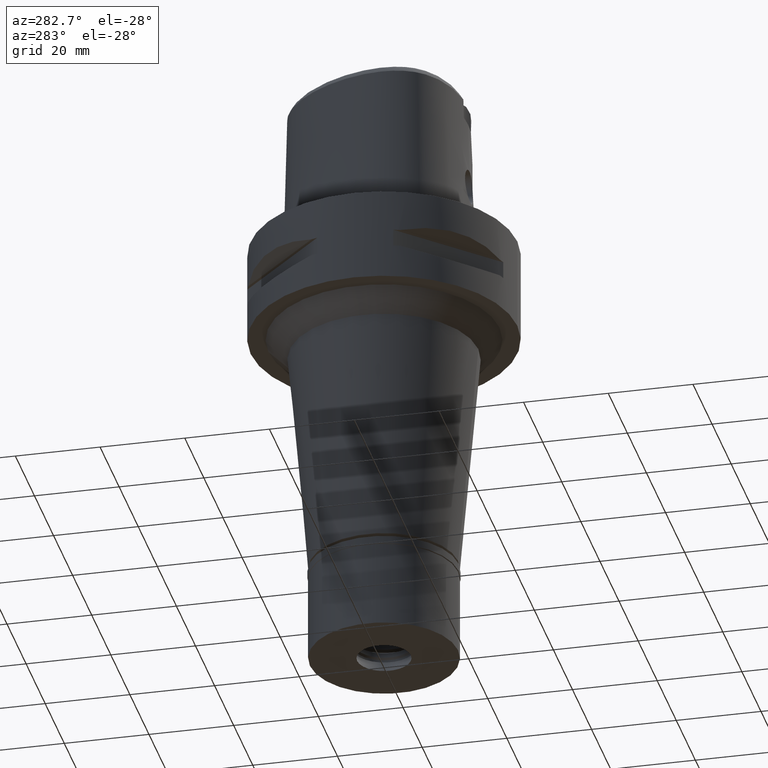
[diagram: clean part render]
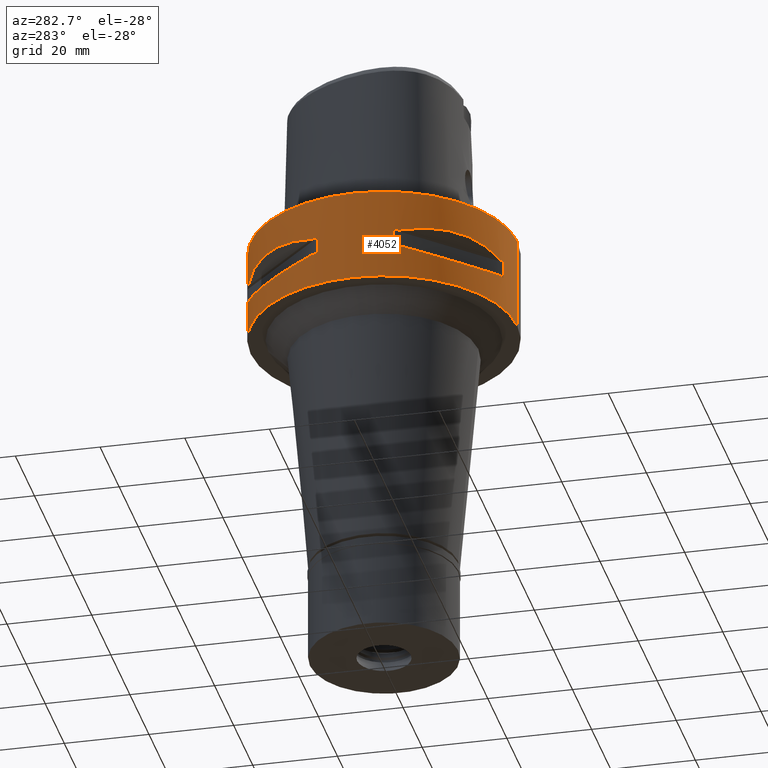
[diagram: same view with one face highlighted and labeled with its STEP entity id]
A machine part, auxiliary view. The second image highlights one B-rep face of the part: STEP entity #4052.
In plain terms, the highlighted cylindrical surface (partial cylindrical patch) has radius 31.5 mm, axis along (0, 0, -1).
Its self-contained STEP definition (entity closure, byte-faithful):
#28 = DIRECTION ( 'NONE',  ( 0.0000000000000000000, 0.0000000000000000000, 1.000000000000000000 ) ) ;
#47 = DIRECTION ( 'NONE',  ( 0.0000000000000000000, 0.0000000000000000000, 1.000000000000000000 ) ) ;
#51 = EDGE_CURVE ( 'NONE', #4972, #795, #2854, .T. ) ;
#57 = DIRECTION ( 'NONE',  ( 0.0000000000000000000, 0.0000000000000000000, -1.000000000000000000 ) ) ;
#63 = CARTESIAN_POINT ( 'NONE',  ( -23.90617837140505841, 20.64154884334744722, -8.160613588441446353 ) ) ;
#92 = VECTOR ( 'NONE', #4128, 1000.000000000000000 ) ;
#105 = CARTESIAN_POINT ( 'NONE',  ( -8.981198972019999616, -30.19251670572000279, -14.05000000000000071 ) ) ;
#111 = LINE ( 'NONE', #815, #173 ) ;
#112 = CARTESIAN_POINT ( 'NONE',  ( -8.981198972019999616, 30.19251670572000279, -9.950000000000001066 ) ) ;
#154 = CARTESIAN_POINT ( 'NONE',  ( -29.71690375017999841, 10.44775724750000023, -14.05000000000000071 ) ) ;
#173 = VECTOR ( 'NONE', #3857, 1000.000000000000000 ) ;
#188 = DIRECTION ( 'NONE',  ( 0.0000000000000000000, 0.0000000000000000000, -1.000000000000000000 ) ) ;
#196 = CARTESIAN_POINT ( 'NONE',  ( -29.31542262584746794, -11.58970337494326941, -14.35229357166913999 ) ) ;
#246 = DIRECTION ( 'NONE',  ( 0.0000000000000000000, 1.000000000000000000, 0.0000000000000000000 ) ) ;
#253 = CARTESIAN_POINT ( 'NONE',  ( -8.981198972017999438, 30.19251670572000279, -14.05000000000000071 ) ) ;
#256 = VERTEX_POINT ( 'NONE', #4543 ) ;
#288 = CARTESIAN_POINT ( 'NONE',  ( -25.37277178168283953, -18.81455742163207390, -8.309746333127383977 ) ) ;
#310 = FACE_OUTER_BOUND ( 'NONE', #471, .T. ) ;
#315 = CIRCLE ( 'NONE', #891, 31.50000000000001776 ) ;
#357 = ORIENTED_EDGE ( 'NONE', *, *, #1693, .T. ) ;
#434 = CARTESIAN_POINT ( 'NONE',  ( -30.19251670572000279, -8.981198972017999438, -14.05000000000000071 ) ) ;
#465 = CARTESIAN_POINT ( 'NONE',  ( -24.23018836745279714, 20.18579225685798306, -15.78559396978850415 ) ) ;
#471 = EDGE_LOOP ( 'NONE', ( #2396, #1715, #2513, #3330 ) ) ;
#475 = CARTESIAN_POINT ( 'NONE',  ( -26.70521063584532229, -16.70616724745790549, -15.37546661817682292 ) ) ;
#479 = CARTESIAN_POINT ( 'NONE',  ( -29.71690375017999841, 10.44775724750000023, -9.949999999998999201 ) ) ;
#500 = CARTESIAN_POINT ( 'NONE',  ( -26.84474411198783628, -16.48208282228858224, -15.34094883777952667 ) ) ;
#532 = VERTEX_POINT ( 'NONE', #4860 ) ;
#539 = CARTESIAN_POINT ( 'NONE',  ( -26.01217882834653139, 17.76952662671834915, -15.52665221626015501 ) ) ;
#613 = DIRECTION ( 'NONE',  ( 0.0000000000000000000, 0.0000000000000000000, -1.000000000000000000 ) ) ;
#630 = CARTESIAN_POINT ( 'NONE',  ( 0.0000000000000000000, 1.284838189324999924E-14, -14.05000000000000071 ) ) ;
#660 = VECTOR ( 'NONE', #2873, 1000.000000000000000 ) ;
#668 = EDGE_CURVE ( 'NONE', #845, #688, #1552, .T. ) ;
#670 = ORIENTED_EDGE ( 'NONE', *, *, #3079, .T. ) ;
#688 = VERTEX_POINT ( 'NONE', #4953 ) ;
#728 = AXIS2_PLACEMENT_3D ( 'NONE', #3966, #3637, #3234 ) ;
#766 = CARTESIAN_POINT ( 'NONE',  ( 0.0000000000000000000, 1.284838189324999924E-14, -9.950000000000001066 ) ) ;
#768 = CARTESIAN_POINT ( 'NONE',  ( -16.48208282228564769, 26.84474411198887012, -15.34094883777873619 ) ) ;
#771 = CARTESIAN_POINT ( 'NONE',  ( -20.64154884334743656, 23.90617837140507262, -8.160627831333194138 ) ) ;
#792 = EDGE_LOOP ( 'NONE', ( #670, #3535, #1336, #3014, #357, #3177, #2005, #2811 ) ) ;
#795 = VERTEX_POINT ( 'NONE', #1231 ) ;
#805 = CIRCLE ( 'NONE', #2021, 31.50000000000001776 ) ;
#815 = CARTESIAN_POINT ( 'NONE',  ( -8.981198972017999438, -30.19251670572000279, -14.05000000000000071 ) ) ;
#820 = AXIS2_PLACEMENT_3D ( 'NONE', #630, #613, #4030 ) ;
#824 = CARTESIAN_POINT ( 'NONE',  ( -18.81455742151813837, 25.37277178176733372, -8.309746333162701504 ) ) ;
#827 = CIRCLE ( 'NONE', #2675, 31.50000000000000000 ) ;
#832 = AXIS2_PLACEMENT_3D ( 'NONE', #2988, #47, #2291 ) ;
#845 = VERTEX_POINT ( 'NONE', #112 ) ;
#856 = ORIENTED_EDGE ( 'NONE', *, *, #1075, .F. ) ;
#880 = CARTESIAN_POINT ( 'NONE',  ( -17.35163608579889072, -26.29071741523761929, -15.46976201925527761 ) ) ;
#886 = DIRECTION ( 'NONE',  ( 0.0000000000000000000, -1.000000000000000000, 0.0000000000000000000 ) ) ;
#891 = AXIS2_PLACEMENT_3D ( 'NONE', #2785, #2057, #3172 ) ;
#900 = LINE ( 'NONE', #2062, #2095 ) ;
#932 = ORIENTED_EDGE ( 'NONE', *, *, #1469, .F. ) ;
#936 = CARTESIAN_POINT ( 'NONE',  ( -29.71690375017999841, -10.44775724750000023, -9.949999999998999201 ) ) ;
#984 = CARTESIAN_POINT ( 'NONE',  ( -26.60451452154760332, -16.86571563436626064, -15.39949295786003347 ) ) ;
#1018 = DIRECTION ( 'NONE',  ( 0.0000000000000000000, 0.0000000000000000000, 1.000000000000000000 ) ) ;
#1075 = EDGE_CURVE ( 'NONE', #845, #1614, #1773, .T. ) ;
#1209 = CARTESIAN_POINT ( 'NONE',  ( -20.65093790435807364, 23.89673728056094859, -15.83935804902020550 ) ) ;
#1224 = CARTESIAN_POINT ( 'NONE',  ( 0.0000000000000000000, 1.284838189324999924E-14, -9.950000000000001066 ) ) ;
#1231 = CARTESIAN_POINT ( 'NONE',  ( -30.19251670572000279, 8.981198972017999438, -9.950000000000001066 ) ) ;
#1260 = CARTESIAN_POINT ( 'NONE',  ( -26.54368690921649687, 16.96123479564916892, -15.41365572341313239 ) ) ;
#1272 = EDGE_CURVE ( 'NONE', #2385, #2939, #1387, .T. ) ;
#1284 = CARTESIAN_POINT ( 'NONE',  ( -26.29071741523646111, 17.35163608579689409, -15.46976201925398087 ) ) ;
#1292 = CARTESIAN_POINT ( 'NONE',  ( -17.76952662672209371, -26.01217882834868433, -15.52665221626257264 ) ) ;
#1302 = DIRECTION ( 'NONE',  ( 0.0000000000000000000, 0.0000000000000000000, 1.000000000000000000 ) ) ;
#1319 = CARTESIAN_POINT ( 'NONE',  ( -30.19251670572000279, 8.981198972019999616, -14.05000000000000071 ) ) ;
#1331 = CARTESIAN_POINT ( 'NONE',  ( -26.42800887047508240, 17.14106442934706820, -15.43984550238465836 ) ) ;
#1332 = DIRECTION ( 'NONE',  ( 0.0000000000000000000, 0.0000000000000000000, -1.000000000000000000 ) ) ;
#1336 = ORIENTED_EDGE ( 'NONE', *, *, #1272, .T. ) ;
#1353 = CARTESIAN_POINT ( 'NONE',  ( -8.981198972017999438, -30.19251670572000279, -9.950000000000001066 ) ) ;
#1363 = CARTESIAN_POINT ( 'NONE',  ( -26.58330558444411906, -16.89910283486596754, -15.40446471307235754 ) ) ;
#1387 = CIRCLE ( 'NONE', #728, 31.50000000000001776 ) ;
#1450 = CARTESIAN_POINT ( 'NONE',  ( -28.92474506844683546, -12.70092055730903802, -9.353547358226721897 ) ) ;
#1469 = EDGE_CURVE ( 'NONE', #532, #2609, #4804, .T. ) ;
#1474 = CARTESIAN_POINT ( 'NONE',  ( -10.44775724750000023, 29.71690375017999841, -14.05000000000000071 ) ) ;
#1552 = CIRCLE ( 'NONE', #2595, 31.50000000000001776 ) ;
#1554 = CARTESIAN_POINT ( 'NONE',  ( -11.58970337493613378, 29.31542262584994418, -14.35229357166721265 ) ) ;
#1579 = CARTESIAN_POINT ( 'NONE',  ( -16.89910283486545950, 26.58330558444438907, -15.40446471307224030 ) ) ;
#1614 = VERTEX_POINT ( 'NONE', #253 ) ;
#1623 = LINE ( 'NONE', #2404, #1792 ) ;
#1628 = CARTESIAN_POINT ( 'NONE',  ( -26.48642424310458665, 17.05047092244234008, -15.42670883407647509 ) ) ;
#1641 = ORIENTED_EDGE ( 'NONE', *, *, #4386, .T. ) ;
#1690 = VERTEX_POINT ( 'NONE', #2479 ) ;
#1693 = EDGE_CURVE ( 'NONE', #2699, #2367, #4528, .T. ) ;
#1704 = CARTESIAN_POINT ( 'NONE',  ( 0.0000000000000000000, 1.284838189324999924E-14, -14.05000000000000071 ) ) ;
#1712 = CARTESIAN_POINT ( 'NONE',  ( -25.32725744469575702, -18.86897208070564247, -15.69588095933118943 ) ) ;
#1715 = ORIENTED_EDGE ( 'NONE', *, *, #4529, .F. ) ;
#1773 = LINE ( 'NONE', #4853, #92 ) ;
#1792 = VECTOR ( 'NONE', #57, 1000.000000000000000 ) ;
#1829 = CARTESIAN_POINT ( 'NONE',  ( -23.90617837147175706, -20.64154884328073081, -8.160627831309646751 ) ) ;
#1844 = AXIS2_PLACEMENT_3D ( 'NONE', #1704, #188, #3257 ) ;
#1856 = DIRECTION ( 'NONE',  ( 0.0000000000000000000, 0.0000000000000000000, -1.000000000000000000 ) ) ;
#1862 = B_SPLINE_CURVE_WITH_KNOTS ( 'NONE', 3,
 ( #3712, #1450, #2943, #288, #1829, #2962, #4511, #2230, #4840, #4886 ),
 .UNSPECIFIED., .F., .F.,
 ( 4, 2, 2, 2, 4 ),
 ( 0.0000000000000000000, 0.2499999999999999445, 0.4999999999999998890, 0.7499999999999997780, 1.000000000000000000 ),
 .UNSPECIFIED. ) ;
#1884 = DIRECTION ( 'NONE',  ( 0.0000000000000000000, 0.0000000000000000000, 1.000000000000000000 ) ) ;
#1888 = CARTESIAN_POINT ( 'NONE',  ( -25.37272068390328172, 18.81462633043449273, -8.309724968561150504 ) ) ;
#1910 = CARTESIAN_POINT ( 'NONE',  ( -28.92472615202279584, 12.70097436192367546, -9.353533115182571578 ) ) ;
#1931 = VERTEX_POINT ( 'NONE', #4255 ) ;
#1961 = CARTESIAN_POINT ( 'NONE',  ( -16.03138450077636534, 27.11872488589498786, -15.26880420107476333 ) ) ;
#2005 = ORIENTED_EDGE ( 'NONE', *, *, #4662, .T. ) ;
#2017 = CARTESIAN_POINT ( 'NONE',  ( -23.89673728055121416, -20.65093790435243193, -15.83935804901394739 ) ) ;
#2021 = AXIS2_PLACEMENT_3D ( 'NONE', #3200, #1302, #4736 ) ;
#2030 = EDGE_CURVE ( 'NONE', #2540, #3357, #1623, .T. ) ;
#2049 = CARTESIAN_POINT ( 'NONE',  ( -18.59229662065495958, -25.43927894891979946, -15.62866126334684580 ) ) ;
#2057 = DIRECTION ( 'NONE',  ( 0.0000000000000000000, 0.0000000000000000000, -1.000000000000000000 ) ) ;
#2062 = CARTESIAN_POINT ( 'NONE',  ( -30.19251670572000279, -8.981198972017999438, -9.950000000000001066 ) ) ;
#2095 = VECTOR ( 'NONE', #1332, 1000.000000000000000 ) ;
#2097 = EDGE_CURVE ( 'NONE', #2385, #4483, #111, .T. ) ;
#2124 = CARTESIAN_POINT ( 'NONE',  ( -30.19251670572000279, -8.981198972019999616, -9.950000000000001066 ) ) ;
#2149 = CARTESIAN_POINT ( 'NONE',  ( 0.0000000000000000000, 1.284838189324999924E-14, 0.0000000000000000000 ) ) ;
#2163 = DIRECTION ( 'NONE',  ( 0.0000000000000000000, -1.000000000000000000, 0.0000000000000000000 ) ) ;
#2189 = AXIS2_PLACEMENT_3D ( 'NONE', #1224, #28, #2319 ) ;
#2230 = CARTESIAN_POINT ( 'NONE',  ( -14.84430321578702738, -27.88210502983994132, -8.906184731967030643 ) ) ;
#2278 = DIRECTION ( 'NONE',  ( -0.2851174276831918153, 0.9584925938322735872, 0.0000000000000000000 ) ) ;
#2279 = ORIENTED_EDGE ( 'NONE', *, *, #4205, .T. ) ;
#2291 = DIRECTION ( 'NONE',  ( -0.3316748332540863653, -0.9433937698468619626, 0.0000000000000000000 ) ) ;
#2305 = CARTESIAN_POINT ( 'NONE',  ( -16.70616724745637072, 26.70521063584585164, -15.37546661817639126 ) ) ;
#2319 = DIRECTION ( 'NONE',  ( -0.9433937698468619626, 0.3316748332540863653, 0.0000000000000000000 ) ) ;
#2360 = VERTEX_POINT ( 'NONE', #479 ) ;
#2367 = VERTEX_POINT ( 'NONE', #434 ) ;
#2385 = VERTEX_POINT ( 'NONE', #105 ) ;
#2396 = ORIENTED_EDGE ( 'NONE', *, *, #2837, .T. ) ;
#2404 = CARTESIAN_POINT ( 'NONE',  ( 0.0000000000000000000, 31.50000000000000000, 0.0000000000000000000 ) ) ;
#2451 = B_SPLINE_CURVE_WITH_KNOTS ( 'NONE', 3,
 ( #2469, #196, #4017, #3640, #3285, #500, #475, #2801, #984, #1363, #1712, #2017, #2515, #3570, #2049, #1292, #880, #3264, #3996, #4796, #3191, #4767, #4372, #2870 ),
 .UNSPECIFIED., .F., .F.,
 ( 4, 1, 1, 1, 1, 1, 2, 2, 2, 1, 1, 1, 1, 1, 2, 2, 4 ),
 ( 0.0000000000000000000, 0.1250000000000055511, 0.1875000000000083267, 0.2187500000000097977, 0.2343750000000106304, 0.2421875000000108247, 0.2460937500000108524, 0.2500000000000108802, 0.5000000000000087708, 0.6250000000000075495, 0.6875000000000071054, 0.7187500000000067724, 0.7343750000000066613, 0.7421875000000065503, 0.7460937500000062172, 0.7500000000000059952, 1.000000000000000000 ),
 .UNSPECIFIED. ) ;
#2467 = EDGE_CURVE ( 'NONE', #2360, #795, #4131, .T. ) ;
#2469 = CARTESIAN_POINT ( 'NONE',  ( -29.71690375017999841, -10.44775724750000023, -14.05000000000000071 ) ) ;
#2479 = CARTESIAN_POINT ( 'NONE',  ( 0.0000000000000000000, -31.50000000000000000, -22.00000000000000000 ) ) ;
#2513 = ORIENTED_EDGE ( 'NONE', *, *, #2573, .T. ) ;
#2515 = CARTESIAN_POINT ( 'NONE',  ( -21.46242677078364025, -23.08532645888299939, -15.83938991065501867 ) ) ;
#2526 = CARTESIAN_POINT ( 'NONE',  ( -29.71690375017999841, 10.44775724750000023, -14.05000000000000071 ) ) ;
#2540 = VERTEX_POINT ( 'NONE', #3110 ) ;
#2573 = EDGE_CURVE ( 'NONE', #256, #2540, #4381, .T. ) ;
#2574 = DIRECTION ( 'NONE',  ( 0.0000000000000000000, 0.0000000000000000000, -1.000000000000000000 ) ) ;
#2583 = FACE_BOUND ( 'NONE', #2779, .T. ) ;
#2595 = AXIS2_PLACEMENT_3D ( 'NONE', #766, #1884, #2278 ) ;
#2609 = VERTEX_POINT ( 'NONE', #2526 ) ;
#2675 = AXIS2_PLACEMENT_3D ( 'NONE', #2949, #1018, #246 ) ;
#2699 = VERTEX_POINT ( 'NONE', #3604 ) ;
#2731 = CARTESIAN_POINT ( 'NONE',  ( -23.08532645888017854, 21.46242677077873751, -15.83938991065184076 ) ) ;
#2735 = CARTESIAN_POINT ( 'NONE',  ( -12.70092055722009761, 28.92474506847810645, -9.353547358250267507 ) ) ;
#2737 = CARTESIAN_POINT ( 'NONE',  ( 0.0000000000000000000, 31.50000000000000000, -22.00000000000000000 ) ) ;
#2779 = EDGE_LOOP ( 'NONE', ( #3194, #3456, #3832, #932, #1641, #856, #4739, #2279 ) ) ;
#2785 = CARTESIAN_POINT ( 'NONE',  ( 0.0000000000000000000, 1.284838189324999924E-14, -14.05000000000000071 ) ) ;
#2801 = CARTESIAN_POINT ( 'NONE',  ( -26.64486562695783789, -16.80193241490531975, -15.38992683735687272 ) ) ;
#2811 = ORIENTED_EDGE ( 'NONE', *, *, #4138, .T. ) ;
#2837 = EDGE_CURVE ( 'NONE', #3357, #1690, #827, .T. ) ;
#2854 = LINE ( 'NONE', #4095, #660 ) ;
#2870 = CARTESIAN_POINT ( 'NONE',  ( -10.44775724750000023, -29.71690375017999841, -14.05000000000000071 ) ) ;
#2873 = DIRECTION ( 'NONE',  ( 0.0000000000000000000, 0.0000000000000000000, 1.000000000000000000 ) ) ;
#2939 = VERTEX_POINT ( 'NONE', #4495 ) ;
#2943 = CARTESIAN_POINT ( 'NONE',  ( -27.88214534470564132, -14.84422749199031877, -8.906206096497939484 ) ) ;
#2949 = CARTESIAN_POINT ( 'NONE',  ( 0.0000000000000000000, 1.284838189324999924E-14, -22.00000000000000000 ) ) ;
#2962 = CARTESIAN_POINT ( 'NONE',  ( -20.64154884328073081, -23.90617837147174995, -8.160613588464993740 ) ) ;
#2988 = CARTESIAN_POINT ( 'NONE',  ( 0.0000000000000000000, 1.284838189324999924E-14, -9.950000000000001066 ) ) ;
#3014 = ORIENTED_EDGE ( 'NONE', *, *, #3911, .F. ) ;
#3041 = CARTESIAN_POINT ( 'NONE',  ( -14.84422749186513713, 27.88214534477230444, -8.906206096533262340 ) ) ;
#3079 = EDGE_CURVE ( 'NONE', #1931, #4483, #4387, .T. ) ;
#3110 = CARTESIAN_POINT ( 'NONE',  ( 0.0000000000000000000, 31.50000000000000000, 0.0000000000000000000 ) ) ;
#3120 = CARTESIAN_POINT ( 'NONE',  ( -18.86897208073744991, 25.32725744467937545, -15.69588095933747240 ) ) ;
#3148 = VERTEX_POINT ( 'NONE', #2124 ) ;
#3172 = DIRECTION ( 'NONE',  ( -0.9584925938322735872, 0.2851174276831918153, 0.0000000000000000000 ) ) ;
#3177 = ORIENTED_EDGE ( 'NONE', *, *, #4290, .F. ) ;
#3191 = CARTESIAN_POINT ( 'NONE',  ( -16.96123479564984748, -26.54368690921626950, -15.41365572341332424 ) ) ;
#3194 = ORIENTED_EDGE ( 'NONE', *, *, #2467, .T. ) ;
#3200 = CARTESIAN_POINT ( 'NONE',  ( 0.0000000000000000000, 1.284838189324999924E-14, -9.950000000000001066 ) ) ;
#3234 = DIRECTION ( 'NONE',  ( -0.2851174276831918153, -0.9584925938322735872, 0.0000000000000000000 ) ) ;
#3256 = CARTESIAN_POINT ( 'NONE',  ( -25.43927894891607622, 18.59229662064853983, -15.62866126334269623 ) ) ;
#3257 = DIRECTION ( 'NONE',  ( -0.3316748332540863653, 0.9433937698468619626, 0.0000000000000000000 ) ) ;
#3264 = CARTESIAN_POINT ( 'NONE',  ( -17.14106442934810204, -26.42800887047570058, -15.43984550238532982 ) ) ;
#3285 = CARTESIAN_POINT ( 'NONE',  ( -27.11872488589304453, -16.03138450078185429, -15.26880420107623237 ) ) ;
#3298 = LINE ( 'NONE', #4062, #4677 ) ;
#3330 = ORIENTED_EDGE ( 'NONE', *, *, #2030, .T. ) ;
#3357 = VERTEX_POINT ( 'NONE', #2737 ) ;
#3374 = B_SPLINE_CURVE_WITH_KNOTS ( 'NONE', 3,
 ( #3511, #2735, #3041, #824, #771, #63, #1888, #3436, #1910, #4587 ),
 .UNSPECIFIED., .F., .F.,
 ( 4, 2, 2, 2, 4 ),
 ( 0.0000000000000000000, 0.2500000000000000000, 0.5000000000000000000, 0.7500000000000000000, 1.000000000000000000 ),
 .UNSPECIFIED. ) ;
#3408 = CYLINDRICAL_SURFACE ( 'NONE', #4311, 31.50000000000000000 ) ;
#3436 = CARTESIAN_POINT ( 'NONE',  ( -27.88210502977326755, 14.84430321591230495, -8.906184731931707788 ) ) ;
#3456 = ORIENTED_EDGE ( 'NONE', *, *, #51, .F. ) ;
#3507 = CARTESIAN_POINT ( 'NONE',  ( -16.86571563436579169, 26.60451452154777030, -15.39949295785988426 ) ) ;
#3511 = CARTESIAN_POINT ( 'NONE',  ( -10.44775724750000023, 29.71690375017999841, -9.949999999998999201 ) ) ;
#3535 = ORIENTED_EDGE ( 'NONE', *, *, #2097, .F. ) ;
#3570 = CARTESIAN_POINT ( 'NONE',  ( -20.18579225686653444, -24.23018836745773541, -15.78559396979401974 ) ) ;
#3604 = CARTESIAN_POINT ( 'NONE',  ( -29.71690375017999841, -10.44775724750000023, -14.05000000000000071 ) ) ;
#3622 = DIRECTION ( 'NONE',  ( 0.0000000000000000000, 0.0000000000000000000, -1.000000000000000000 ) ) ;
#3637 = DIRECTION ( 'NONE',  ( 0.0000000000000000000, 0.0000000000000000000, -1.000000000000000000 ) ) ;
#3640 = CARTESIAN_POINT ( 'NONE',  ( -27.64634172018421410, -15.11986997309601577, -15.11207862403482238 ) ) ;
#3712 = CARTESIAN_POINT ( 'NONE',  ( -29.71690375017999841, -10.44775724750000023, -9.949999999998999201 ) ) ;
#3832 = ORIENTED_EDGE ( 'NONE', *, *, #4688, .T. ) ;
#3857 = DIRECTION ( 'NONE',  ( 0.0000000000000000000, 0.0000000000000000000, 1.000000000000000000 ) ) ;
#3860 = CARTESIAN_POINT ( 'NONE',  ( -16.80193241490443157, 26.64486562695815053, -15.38992683735661515 ) ) ;
#3894 = VERTEX_POINT ( 'NONE', #936 ) ;
#3911 = EDGE_CURVE ( 'NONE', #2699, #2939, #2451, .T. ) ;
#3918 = CARTESIAN_POINT ( 'NONE',  ( -28.91382665368626093, 12.73197616788979047, -14.65467361754097197 ) ) ;
#3966 = CARTESIAN_POINT ( 'NONE',  ( 0.0000000000000000000, 1.284838189324999924E-14, -14.05000000000000071 ) ) ;
#3977 = AXIS2_PLACEMENT_3D ( 'NONE', #2149, #3622, #886 ) ;
#3986 = CARTESIAN_POINT ( 'NONE',  ( -27.86285265926284893, 14.89252659058025685, -15.10765629752004813 ) ) ;
#3996 = CARTESIAN_POINT ( 'NONE',  ( -17.05047092244293694, -26.48642424310493837, -15.42670883407686588 ) ) ;
#4017 = CARTESIAN_POINT ( 'NONE',  ( -28.62019653468943048, -13.25636937903484203, -14.74888225541266884 ) ) ;
#4030 = DIRECTION ( 'NONE',  ( -0.9433937698468619626, -0.3316748332540863653, 0.0000000000000000000 ) ) ;
#4035 = CIRCLE ( 'NONE', #1844, 31.50000000000000711 ) ;
#4052 = ADVANCED_FACE ( 'NONE', ( #310, #2583, #4139 ), #3408, .T. ) ;
#4062 = CARTESIAN_POINT ( 'NONE',  ( 0.0000000000000000000, -31.50000000000000000, 0.0000000000000000000 ) ) ;
#4095 = CARTESIAN_POINT ( 'NONE',  ( -30.19251670572000279, 8.981198972017999438, -14.05000000000000071 ) ) ;
#4128 = DIRECTION ( 'NONE',  ( 0.0000000000000000000, 0.0000000000000000000, -1.000000000000000000 ) ) ;
#4131 = CIRCLE ( 'NONE', #2189, 31.50000000000000711 ) ;
#4138 = EDGE_CURVE ( 'NONE', #3894, #1931, #1862, .T. ) ;
#4139 = FACE_BOUND ( 'NONE', #792, .T. ) ;
#4205 = EDGE_CURVE ( 'NONE', #688, #2360, #3374, .T. ) ;
#4236 = CARTESIAN_POINT ( 'NONE',  ( -15.11986997308662595, 27.64634172018752523, -15.11207862403231239 ) ) ;
#4255 = CARTESIAN_POINT ( 'NONE',  ( -10.44775724750000023, -29.71690375017999841, -9.949999999998999201 ) ) ;
#4262 = CARTESIAN_POINT ( 'NONE',  ( -13.25636937902232404, 28.62019653469382163, -14.74888225540932751 ) ) ;
#4290 = EDGE_CURVE ( 'NONE', #3148, #2367, #900, .T. ) ;
#4311 = AXIS2_PLACEMENT_3D ( 'NONE', #4866, #1856, #2163 ) ;
#4372 = CARTESIAN_POINT ( 'NONE',  ( -12.73197616784617381, -28.91382665370159799, -14.65467361752943809 ) ) ;
#4381 = CIRCLE ( 'NONE', #3977, 31.50000000000000000 ) ;
#4386 = EDGE_CURVE ( 'NONE', #532, #1614, #4035, .T. ) ;
#4387 = CIRCLE ( 'NONE', #832, 31.50000000000000711 ) ;
#4483 = VERTEX_POINT ( 'NONE', #1353 ) ;
#4495 = CARTESIAN_POINT ( 'NONE',  ( -10.44775724750000023, -29.71690375017999841, -14.05000000000000071 ) ) ;
#4511 = CARTESIAN_POINT ( 'NONE',  ( -18.81462633032050391, -25.37272068398777947, -8.309724968596469807 ) ) ;
#4528 = CIRCLE ( 'NONE', #820, 31.50000000000000711 ) ;
#4529 = EDGE_CURVE ( 'NONE', #256, #1690, #3298, .T. ) ;
#4543 = CARTESIAN_POINT ( 'NONE',  ( 0.0000000000000000000, -31.50000000000000000, 0.0000000000000000000 ) ) ;
#4587 = CARTESIAN_POINT ( 'NONE',  ( -29.71690375017999841, 10.44775724750000023, -9.949999999998999201 ) ) ;
#4662 = EDGE_CURVE ( 'NONE', #3148, #3894, #805, .T. ) ;
#4677 = VECTOR ( 'NONE', #2574, 1000.000000000000000 ) ;
#4685 = CARTESIAN_POINT ( 'NONE',  ( -26.52527364208584615, 16.98999780422065342, -15.41788098766309467 ) ) ;
#4688 = EDGE_CURVE ( 'NONE', #4972, #2609, #315, .T. ) ;
#4736 = DIRECTION ( 'NONE',  ( -0.9584925938322735872, -0.2851174276831918153, 0.0000000000000000000 ) ) ;
#4739 = ORIENTED_EDGE ( 'NONE', *, *, #668, .T. ) ;
#4767 = CARTESIAN_POINT ( 'NONE',  ( -14.89252659053665440, -27.86285265927818600, -15.10765629750852135 ) ) ;
#4796 = CARTESIAN_POINT ( 'NONE',  ( -16.98999780422095540, -26.52527364208602734, -15.41788098766330783 ) ) ;
#4804 = B_SPLINE_CURVE_WITH_KNOTS ( 'NONE', 3,
 ( #1474, #1554, #4262, #4236, #1961, #768, #2305, #3860, #3507, #1579, #3120, #1209, #2731, #465, #3256, #539, #1284, #1331, #1628, #4685, #1260, #3986, #3918, #154 ),
 .UNSPECIFIED., .F., .F.,
 ( 4, 1, 1, 1, 1, 1, 2, 2, 2, 1, 1, 1, 1, 1, 2, 2, 4 ),
 ( 0.0000000000000000000, 0.1249999999999950040, 0.1874999999999924505, 0.2187499999999911737, 0.2343749999999902855, 0.2421874999999899802, 0.2460937499999900080, 0.2499999999999900080, 0.4999999999999917843, 0.6249999999999925615, 0.6874999999999925615, 0.7187499999999924505, 0.7343749999999926725, 0.7421874999999927836, 0.7460937499999928946, 0.7499999999999931166, 1.000000000000000000 ),
 .UNSPECIFIED. ) ;
#4840 = CARTESIAN_POINT ( 'NONE',  ( -12.70097436183464268, -28.92472615205406683, -9.353533115206113635 ) ) ;
#4853 = CARTESIAN_POINT ( 'NONE',  ( -8.981198972017999438, 30.19251670572000279, -9.950000000000001066 ) ) ;
#4860 = CARTESIAN_POINT ( 'NONE',  ( -10.44775724750000023, 29.71690375017999841, -14.05000000000000071 ) ) ;
#4866 = CARTESIAN_POINT ( 'NONE',  ( 0.0000000000000000000, 1.284838189324999924E-14, 4.915000000000000036 ) ) ;
#4886 = CARTESIAN_POINT ( 'NONE',  ( -10.44775724750000023, -29.71690375017999841, -9.949999999998999201 ) ) ;
#4953 = CARTESIAN_POINT ( 'NONE',  ( -10.44775724750000023, 29.71690375017999841, -9.949999999998999201 ) ) ;
#4972 = VERTEX_POINT ( 'NONE', #1319 ) ;